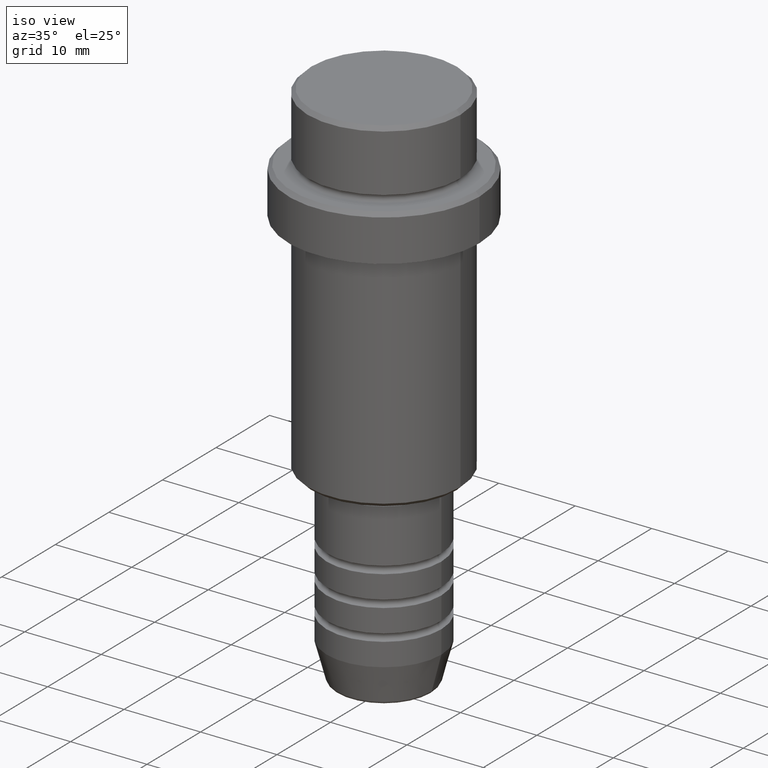
[diagram: clean part render]
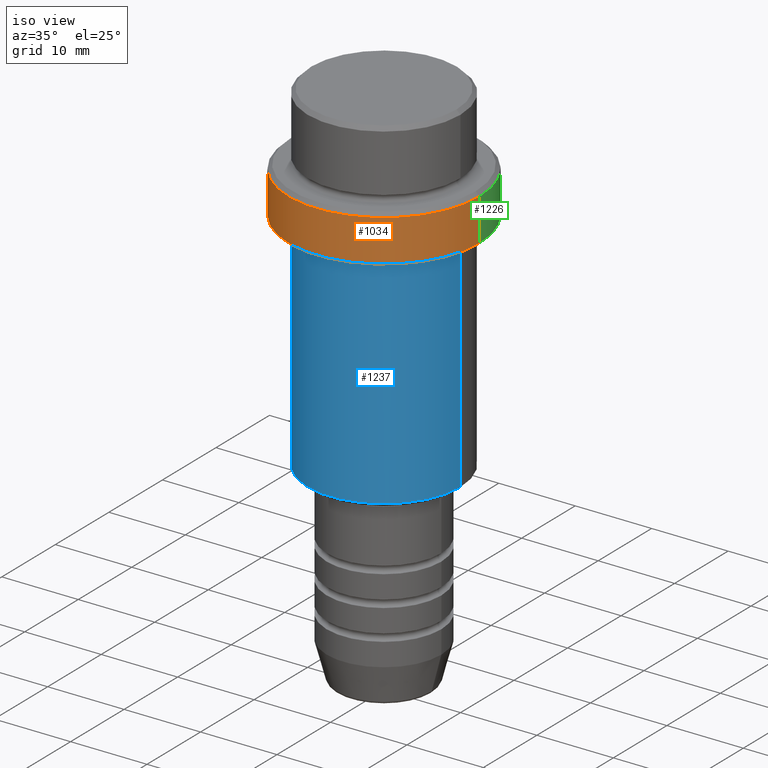
[diagram: same view with three faces highlighted in distinct colors, each labeled with its STEP entity id]
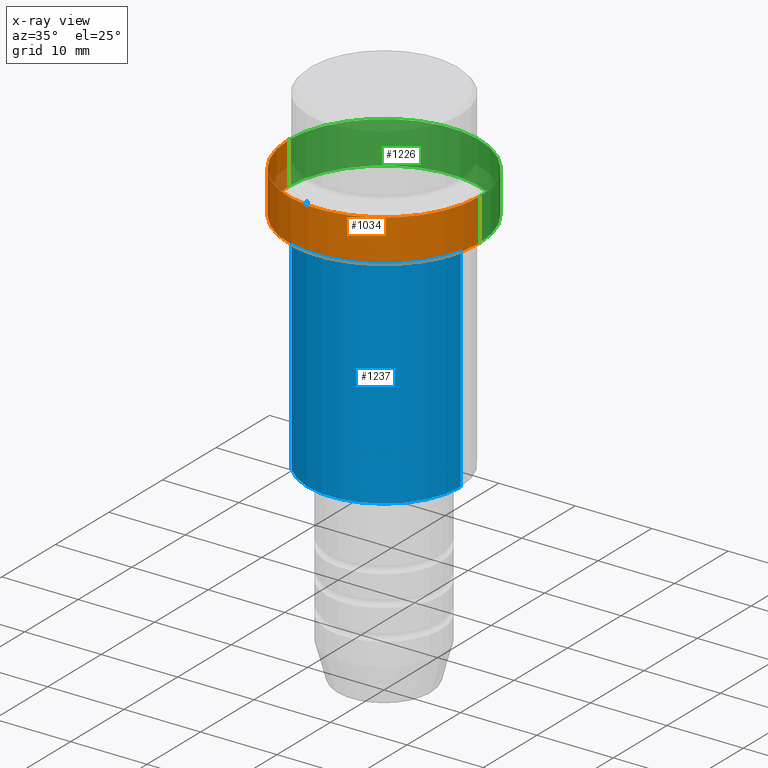
[diagram: x-ray of the same camera — body ghosted, the three highlighted faces saturated]
A machine part, iso view with three faces highlighted in distinct colors.
The next image is the same camera in x-ray (body ghosted, the three faces saturated) — at least one of them is partly hidden behind the body in this view.
Their STEP definitions:

[orange] entity #1034 — the highlighted cylindrical surface (partial cylindrical patch) has radius 12.5 mm, axis along (-0, -0, 1).
#15 = DIRECTION ( 'NONE',  ( -0.000000000000000000, -0.000000000000000000, 1.000000000000000000 ) ) ;
#42 = AXIS2_PLACEMENT_3D ( 'NONE', #409, #840, #382 ) ;
#82 = EDGE_CURVE ( 'NONE', #273, #541, #960, .T. ) ;
#91 = CARTESIAN_POINT ( 'NONE',  ( 0.000000000000000000, 0.000000000000000000, 0.000000000000000000 ) ) ;
#225 = CARTESIAN_POINT ( 'NONE',  ( 12.50000000000000000, 0.000000000000000000, -15.00000000000000178 ) ) ;
#230 = CARTESIAN_POINT ( 'NONE',  ( -12.50000000000000000, 1.530808498934191521E-15, 0.000000000000000000 ) ) ;
#232 = CARTESIAN_POINT ( 'NONE',  ( -12.50000000000000000, 1.530808498934191521E-15, -15.00000000000000178 ) ) ;
#252 = EDGE_CURVE ( 'NONE', #273, #612, #333, .T. ) ;
#273 = VERTEX_POINT ( 'NONE', #232 ) ;
#333 = LINE ( 'NONE', #230, #573 ) ;
#382 = DIRECTION ( 'NONE',  ( 1.000000000000000000, 0.000000000000000000, 0.000000000000000000 ) ) ;
#409 = CARTESIAN_POINT ( 'NONE',  ( 0.000000000000000000, 0.000000000000000000, -9.500000000000014211 ) ) ;
#492 = CARTESIAN_POINT ( 'NONE',  ( 12.50000000000000000, 0.000000000000000000, 0.000000000000000000 ) ) ;
#541 = VERTEX_POINT ( 'NONE', #225 ) ;
#573 = VECTOR ( 'NONE', #1001, 1000.000000000000000 ) ;
#601 = AXIS2_PLACEMENT_3D ( 'NONE', #91, #1302, #731 ) ;
#612 = VERTEX_POINT ( 'NONE', #693 ) ;
#626 = EDGE_CURVE ( 'NONE', #1117, #612, #1252, .T. ) ;
#693 = CARTESIAN_POINT ( 'NONE',  ( -12.50000000000000000, 1.530808498934191521E-15, -9.500000000000014211 ) ) ;
#731 = DIRECTION ( 'NONE',  ( 1.000000000000000000, 0.000000000000000000, 0.000000000000000000 ) ) ;
#799 = EDGE_LOOP ( 'NONE', ( #1175, #1309, #1008, #929 ) ) ;
#840 = DIRECTION ( 'NONE',  ( 0.000000000000000000, 0.000000000000000000, -1.000000000000000000 ) ) ;
#875 = VECTOR ( 'NONE', #1136, 1000.000000000000000 ) ;
#905 = EDGE_CURVE ( 'NONE', #541, #1117, #933, .T. ) ;
#929 = ORIENTED_EDGE ( 'NONE', *, *, #626, .T. ) ;
#933 = LINE ( 'NONE', #492, #875 ) ;
#938 = CARTESIAN_POINT ( 'NONE',  ( 12.50000000000000000, 0.000000000000000000, -9.500000000000014211 ) ) ;
#960 = CIRCLE ( 'NONE', #1123, 12.50000000000000000 ) ;
#964 = CYLINDRICAL_SURFACE ( 'NONE', #601, 12.50000000000000000 ) ;
#974 = DIRECTION ( 'NONE',  ( 1.000000000000000000, 0.000000000000000000, 0.000000000000000000 ) ) ;
#982 = CARTESIAN_POINT ( 'NONE',  ( 0.000000000000000000, 0.000000000000000000, -15.00000000000000178 ) ) ;
#1001 = DIRECTION ( 'NONE',  ( -0.000000000000000000, -0.000000000000000000, 1.000000000000000000 ) ) ;
#1008 = ORIENTED_EDGE ( 'NONE', *, *, #905, .T. ) ;
#1034 = ADVANCED_FACE ( 'NONE', ( #1189 ), #964, .T. ) ;
#1117 = VERTEX_POINT ( 'NONE', #938 ) ;
#1123 = AXIS2_PLACEMENT_3D ( 'NONE', #982, #15, #974 ) ;
#1136 = DIRECTION ( 'NONE',  ( -0.000000000000000000, -0.000000000000000000, 1.000000000000000000 ) ) ;
#1175 = ORIENTED_EDGE ( 'NONE', *, *, #252, .F. ) ;
#1189 = FACE_OUTER_BOUND ( 'NONE', #799, .T. ) ;
#1252 = CIRCLE ( 'NONE', #42, 12.50000000000000000 ) ;
#1302 = DIRECTION ( 'NONE',  ( -0.000000000000000000, -0.000000000000000000, 1.000000000000000000 ) ) ;
#1309 = ORIENTED_EDGE ( 'NONE', *, *, #82, .T. ) ;

[blue] entity #1237 — the highlighted cylindrical surface (partial cylindrical patch) has radius 10 mm, axis along (-0, -0, 1).
#10 = CIRCLE ( 'NONE', #574, 10.00000000000000000 ) ;
#87 = LINE ( 'NONE', #1292, #785 ) ;
#119 = CARTESIAN_POINT ( 'NONE',  ( 0.000000000000000000, 0.000000000000000000, -16.00000000000000000 ) ) ;
#122 = AXIS2_PLACEMENT_3D ( 'NONE', #1062, #1402, #410 ) ;
#129 = DIRECTION ( 'NONE',  ( -0.000000000000000000, -0.000000000000000000, 1.000000000000000000 ) ) ;
#205 = VERTEX_POINT ( 'NONE', #1278 ) ;
#288 = CARTESIAN_POINT ( 'NONE',  ( -10.00000000000000000, 1.224646799147353256E-15, -44.50000000000000000 ) ) ;
#292 = DIRECTION ( 'NONE',  ( 1.000000000000000000, 0.000000000000000000, 0.000000000000000000 ) ) ;
#309 = ORIENTED_EDGE ( 'NONE', *, *, #801, .F. ) ;
#311 = DIRECTION ( 'NONE',  ( -0.000000000000000000, -0.000000000000000000, 1.000000000000000000 ) ) ;
#342 = AXIS2_PLACEMENT_3D ( 'NONE', #883, #432, #997 ) ;
#369 = EDGE_LOOP ( 'NONE', ( #309, #931, #433, #812 ) ) ;
#410 = DIRECTION ( 'NONE',  ( -1.000000000000000000, 0.000000000000000000, 0.000000000000000000 ) ) ;
#430 = EDGE_CURVE ( 'NONE', #1372, #671, #10, .T. ) ;
#432 = DIRECTION ( 'NONE',  ( -0.000000000000000000, -0.000000000000000000, 1.000000000000000000 ) ) ;
#433 = ORIENTED_EDGE ( 'NONE', *, *, #813, .T. ) ;
#438 = CYLINDRICAL_SURFACE ( 'NONE', #342, 10.00000000000000000 ) ;
#441 = DIRECTION ( 'NONE',  ( -0.000000000000000000, -0.000000000000000000, 1.000000000000000000 ) ) ;
#464 = VERTEX_POINT ( 'NONE', #288 ) ;
#534 = FACE_OUTER_BOUND ( 'NONE', #369, .T. ) ;
#574 = AXIS2_PLACEMENT_3D ( 'NONE', #119, #129, #292 ) ;
#671 = VERTEX_POINT ( 'NONE', #1345 ) ;
#785 = VECTOR ( 'NONE', #311, 1000.000000000000000 ) ;
#801 = EDGE_CURVE ( 'NONE', #464, #1372, #87, .T. ) ;
#812 = ORIENTED_EDGE ( 'NONE', *, *, #430, .F. ) ;
#813 = EDGE_CURVE ( 'NONE', #205, #671, #1238, .T. ) ;
#883 = CARTESIAN_POINT ( 'NONE',  ( 0.000000000000000000, 0.000000000000000000, 0.000000000000000000 ) ) ;
#931 = ORIENTED_EDGE ( 'NONE', *, *, #1025, .T. ) ;
#997 = DIRECTION ( 'NONE',  ( 1.000000000000000000, 0.000000000000000000, 0.000000000000000000 ) ) ;
#1010 = VECTOR ( 'NONE', #441, 1000.000000000000000 ) ;
#1025 = EDGE_CURVE ( 'NONE', #464, #205, #1254, .T. ) ;
#1062 = CARTESIAN_POINT ( 'NONE',  ( 0.000000000000000000, 0.000000000000000000, -44.50000000000000000 ) ) ;
#1124 = CARTESIAN_POINT ( 'NONE',  ( 10.00000000000000000, 0.000000000000000000, 0.000000000000000000 ) ) ;
#1237 = ADVANCED_FACE ( 'NONE', ( #534 ), #438, .T. ) ;
#1238 = LINE ( 'NONE', #1124, #1010 ) ;
#1254 = CIRCLE ( 'NONE', #122, 10.00000000000000000 ) ;
#1257 = CARTESIAN_POINT ( 'NONE',  ( -10.00000000000000000, 1.224646799147353256E-15, -16.00000000000000000 ) ) ;
#1278 = CARTESIAN_POINT ( 'NONE',  ( 10.00000000000000000, 0.000000000000000000, -44.50000000000000000 ) ) ;
#1292 = CARTESIAN_POINT ( 'NONE',  ( -10.00000000000000000, 1.224646799147353256E-15, 0.000000000000000000 ) ) ;
#1345 = CARTESIAN_POINT ( 'NONE',  ( 10.00000000000000000, 0.000000000000000000, -16.00000000000000000 ) ) ;
#1372 = VERTEX_POINT ( 'NONE', #1257 ) ;
#1402 = DIRECTION ( 'NONE',  ( -0.000000000000000000, -0.000000000000000000, 1.000000000000000000 ) ) ;

[green] entity #1226 — the highlighted cylindrical surface (partial cylindrical patch) has radius 12.5 mm, axis along (-0, -0, 1).
#6 = DIRECTION ( 'NONE',  ( -0.000000000000000000, -0.000000000000000000, 1.000000000000000000 ) ) ;
#14 = DIRECTION ( 'NONE',  ( 1.000000000000000000, 0.000000000000000000, 0.000000000000000000 ) ) ;
#105 = AXIS2_PLACEMENT_3D ( 'NONE', #106, #658, #1329 ) ;
#106 = CARTESIAN_POINT ( 'NONE',  ( 0.000000000000000000, 0.000000000000000000, -15.00000000000000178 ) ) ;
#131 = ORIENTED_EDGE ( 'NONE', *, *, #1186, .T. ) ;
#225 = CARTESIAN_POINT ( 'NONE',  ( 12.50000000000000000, 0.000000000000000000, -15.00000000000000178 ) ) ;
#230 = CARTESIAN_POINT ( 'NONE',  ( -12.50000000000000000, 1.530808498934191521E-15, 0.000000000000000000 ) ) ;
#232 = CARTESIAN_POINT ( 'NONE',  ( -12.50000000000000000, 1.530808498934191521E-15, -15.00000000000000178 ) ) ;
#245 = FACE_OUTER_BOUND ( 'NONE', #769, .T. ) ;
#252 = EDGE_CURVE ( 'NONE', #273, #612, #333, .T. ) ;
#260 = CARTESIAN_POINT ( 'NONE',  ( 0.000000000000000000, 0.000000000000000000, -9.500000000000014211 ) ) ;
#273 = VERTEX_POINT ( 'NONE', #232 ) ;
#333 = LINE ( 'NONE', #230, #573 ) ;
#435 = AXIS2_PLACEMENT_3D ( 'NONE', #260, #687, #1264 ) ;
#460 = AXIS2_PLACEMENT_3D ( 'NONE', #546, #6, #14 ) ;
#492 = CARTESIAN_POINT ( 'NONE',  ( 12.50000000000000000, 0.000000000000000000, 0.000000000000000000 ) ) ;
#541 = VERTEX_POINT ( 'NONE', #225 ) ;
#546 = CARTESIAN_POINT ( 'NONE',  ( 0.000000000000000000, 0.000000000000000000, 0.000000000000000000 ) ) ;
#573 = VECTOR ( 'NONE', #1001, 1000.000000000000000 ) ;
#575 = CIRCLE ( 'NONE', #435, 12.50000000000000000 ) ;
#612 = VERTEX_POINT ( 'NONE', #693 ) ;
#658 = DIRECTION ( 'NONE',  ( -0.000000000000000000, -0.000000000000000000, 1.000000000000000000 ) ) ;
#665 = EDGE_CURVE ( 'NONE', #612, #1117, #575, .T. ) ;
#670 = CYLINDRICAL_SURFACE ( 'NONE', #460, 12.50000000000000000 ) ;
#678 = ORIENTED_EDGE ( 'NONE', *, *, #665, .T. ) ;
#687 = DIRECTION ( 'NONE',  ( 0.000000000000000000, 0.000000000000000000, -1.000000000000000000 ) ) ;
#693 = CARTESIAN_POINT ( 'NONE',  ( -12.50000000000000000, 1.530808498934191521E-15, -9.500000000000014211 ) ) ;
#769 = EDGE_LOOP ( 'NONE', ( #131, #937, #678, #915 ) ) ;
#875 = VECTOR ( 'NONE', #1136, 1000.000000000000000 ) ;
#877 = CIRCLE ( 'NONE', #105, 12.50000000000000000 ) ;
#905 = EDGE_CURVE ( 'NONE', #541, #1117, #933, .T. ) ;
#915 = ORIENTED_EDGE ( 'NONE', *, *, #905, .F. ) ;
#933 = LINE ( 'NONE', #492, #875 ) ;
#937 = ORIENTED_EDGE ( 'NONE', *, *, #252, .T. ) ;
#938 = CARTESIAN_POINT ( 'NONE',  ( 12.50000000000000000, 0.000000000000000000, -9.500000000000014211 ) ) ;
#1001 = DIRECTION ( 'NONE',  ( -0.000000000000000000, -0.000000000000000000, 1.000000000000000000 ) ) ;
#1117 = VERTEX_POINT ( 'NONE', #938 ) ;
#1136 = DIRECTION ( 'NONE',  ( -0.000000000000000000, -0.000000000000000000, 1.000000000000000000 ) ) ;
#1186 = EDGE_CURVE ( 'NONE', #541, #273, #877, .T. ) ;
#1226 = ADVANCED_FACE ( 'NONE', ( #245 ), #670, .T. ) ;
#1264 = DIRECTION ( 'NONE',  ( 1.000000000000000000, 0.000000000000000000, 0.000000000000000000 ) ) ;
#1329 = DIRECTION ( 'NONE',  ( 1.000000000000000000, 0.000000000000000000, 0.000000000000000000 ) ) ;